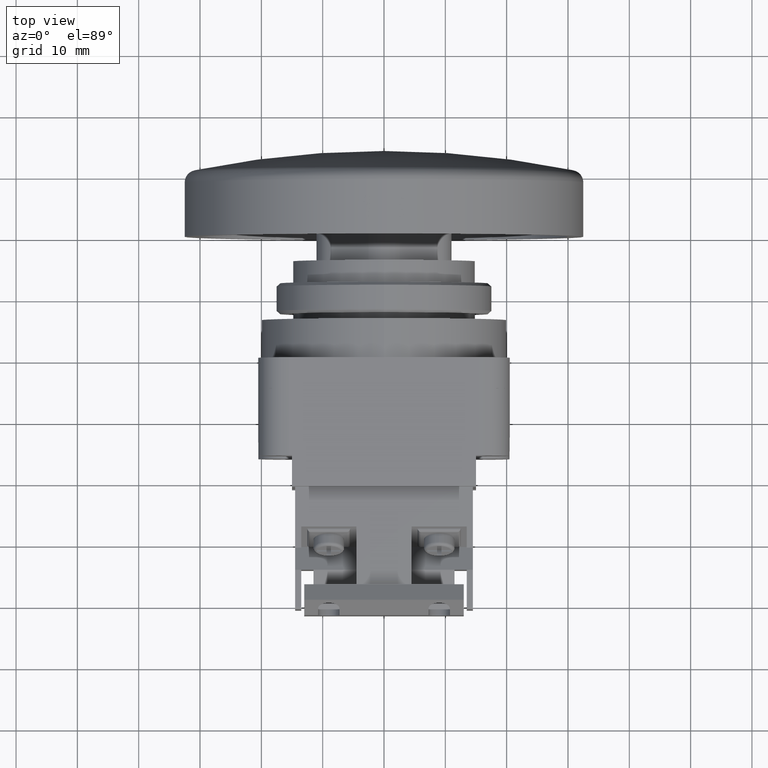
[diagram: clean part render]
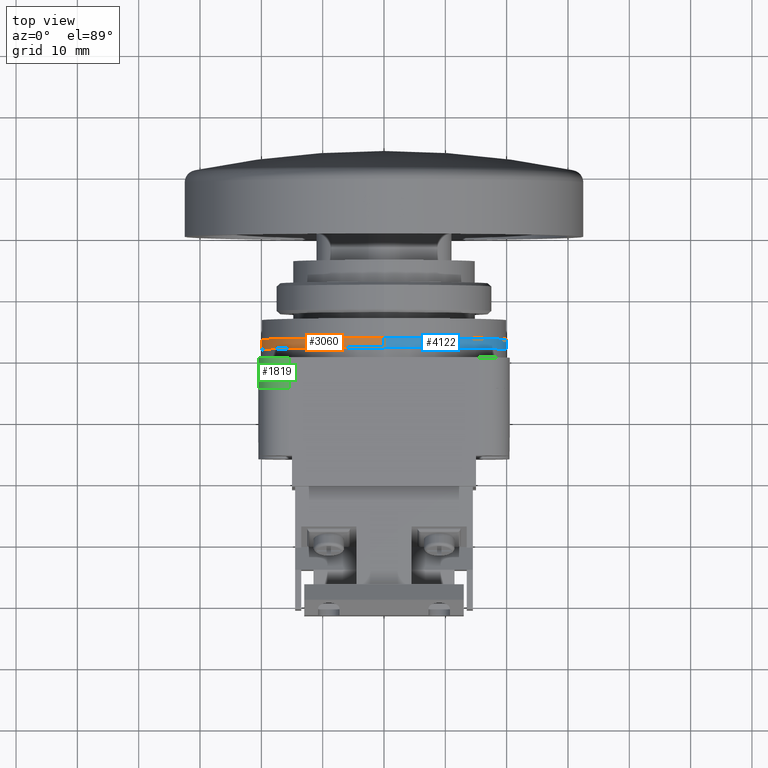
[diagram: same view with three faces highlighted in distinct colors, each labeled with its STEP entity id]
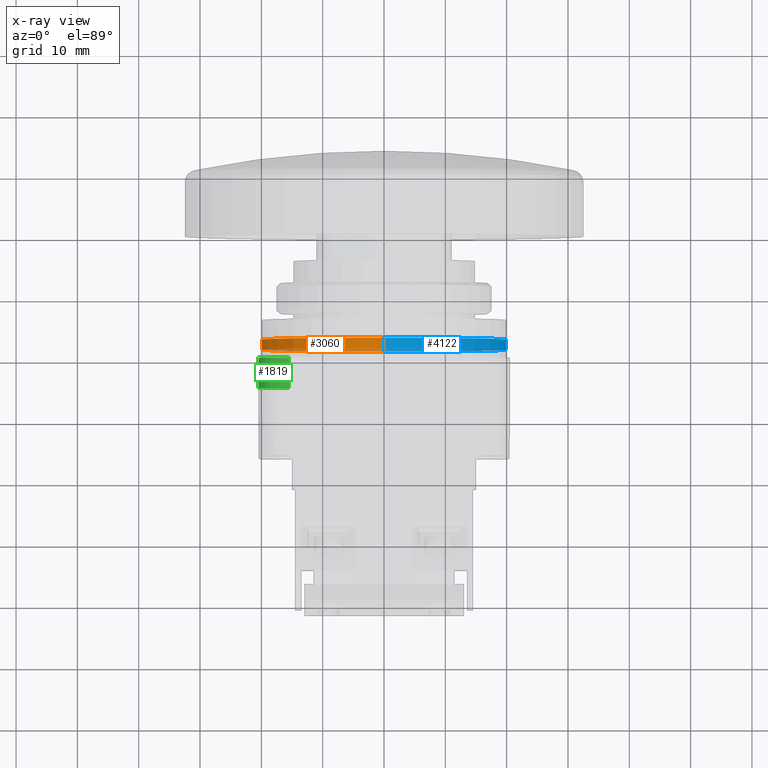
[diagram: x-ray of the same camera — body ghosted, the three highlighted faces saturated]
A machine part, top view with three faces highlighted in distinct colors.
The next image is the same camera in x-ray (body ghosted, the three faces saturated) — at least one of them is partly hidden behind the body in this view.
Their STEP definitions:

[orange] entity #3060 — the highlighted cylindrical surface (partial cylindrical patch) has radius 20 mm, axis along (-0, -1, -0).
#100 = ORIENTED_EDGE ( 'NONE', *, *, #7273, .T. ) ;
#520 = CARTESIAN_POINT ( 'NONE',  ( 2.701731757600108300E-015, 1.600000000000000100, 20.00000000000000000 ) ) ;
#800 = LINE ( 'NONE', #848, #3765 ) ;
#848 = CARTESIAN_POINT ( 'NONE',  ( 2.701731757600108300E-015, 3.200000000000000200, 20.00000000000000000 ) ) ;
#1071 = EDGE_CURVE ( 'NONE', #5324, #7482, #6154, .T. ) ;
#1260 = ORIENTED_EDGE ( 'NONE', *, *, #5693, .F. ) ;
#1266 = ORIENTED_EDGE ( 'NONE', *, *, #6857, .F. ) ;
#1608 = CARTESIAN_POINT ( 'NONE',  ( 2.524381593054017100E-016, 3.200000000000000200, -20.00000000000000000 ) ) ;
#1656 = CIRCLE ( 'NONE', #3781, 20.00000000000000000 ) ;
#1725 = CIRCLE ( 'NONE', #3390, 20.00000000000000000 ) ;
#1991 = DIRECTION ( 'NONE',  ( -0.0000000000000000000, -1.000000000000000000, -0.0000000000000000000 ) ) ;
#2175 = CARTESIAN_POINT ( 'NONE',  ( 2.524381593054017100E-016, 3.200000000000000200, -1.009752637221606900E-015 ) ) ;
#2250 = CARTESIAN_POINT ( 'NONE',  ( 2.524381593054017100E-016, 1.600000000000000100, -20.00000000000000000 ) ) ;
#2391 = FACE_OUTER_BOUND ( 'NONE', #7725, .T. ) ;
#2584 = DIRECTION ( 'NONE',  ( 0.0000000000000000000, 1.000000000000000000, 0.0000000000000000000 ) ) ;
#2778 = DIRECTION ( 'NONE',  ( 0.0000000000000000000, 0.0000000000000000000, 1.000000000000000000 ) ) ;
#2982 = CARTESIAN_POINT ( 'NONE',  ( 2.524381593054017100E-016, 3.200000000000000200, -20.00000000000000000 ) ) ;
#3060 = ADVANCED_FACE ( 'NONE', ( #2391 ), #5353, .T. ) ;
#3385 = VERTEX_POINT ( 'NONE', #520 ) ;
#3390 = AXIS2_PLACEMENT_3D ( 'NONE', #6132, #2584, #6753 ) ;
#3588 = ORIENTED_EDGE ( 'NONE', *, *, #1071, .T. ) ;
#3765 = VECTOR ( 'NONE', #3807, 1000.000000000000000 ) ;
#3781 = AXIS2_PLACEMENT_3D ( 'NONE', #2175, #6335, #2778 ) ;
#3807 = DIRECTION ( 'NONE',  ( -0.0000000000000000000, -1.000000000000000000, -0.0000000000000000000 ) ) ;
#3964 = DIRECTION ( 'NONE',  ( -0.0000000000000000000, -1.000000000000000000, -0.0000000000000000000 ) ) ;
#4556 = VECTOR ( 'NONE', #3964, 1000.000000000000000 ) ;
#5324 = VERTEX_POINT ( 'NONE', #2982 ) ;
#5353 = CYLINDRICAL_SURFACE ( 'NONE', #6883, 20.00000000000000000 ) ;
#5693 = EDGE_CURVE ( 'NONE', #5324, #6775, #1656, .T. ) ;
#6132 = CARTESIAN_POINT ( 'NONE',  ( 2.524381593054017100E-016, 1.600000000000000100, -1.009752637221606900E-015 ) ) ;
#6136 = CARTESIAN_POINT ( 'NONE',  ( 2.524381593054017100E-016, 3.200000000000000200, -1.009752637221606900E-015 ) ) ;
#6154 = LINE ( 'NONE', #1608, #4556 ) ;
#6335 = DIRECTION ( 'NONE',  ( 0.0000000000000000000, 1.000000000000000000, 0.0000000000000000000 ) ) ;
#6644 = CARTESIAN_POINT ( 'NONE',  ( 2.701731757600108300E-015, 3.200000000000000200, 20.00000000000000000 ) ) ;
#6729 = DIRECTION ( 'NONE',  ( 0.0000000000000000000, 0.0000000000000000000, -1.000000000000000000 ) ) ;
#6753 = DIRECTION ( 'NONE',  ( 0.0000000000000000000, 0.0000000000000000000, 1.000000000000000000 ) ) ;
#6775 = VERTEX_POINT ( 'NONE', #6644 ) ;
#6857 = EDGE_CURVE ( 'NONE', #6775, #3385, #800, .T. ) ;
#6883 = AXIS2_PLACEMENT_3D ( 'NONE', #6136, #1991, #6729 ) ;
#7273 = EDGE_CURVE ( 'NONE', #7482, #3385, #1725, .T. ) ;
#7482 = VERTEX_POINT ( 'NONE', #2250 ) ;
#7725 = EDGE_LOOP ( 'NONE', ( #1266, #1260, #3588, #100 ) ) ;

[blue] entity #4122 — the highlighted cylindrical surface (partial cylindrical patch) has radius 20 mm, axis along (-0, -1, -0).
#467 = DIRECTION ( 'NONE',  ( 0.0000000000000000000, 0.0000000000000000000, 1.000000000000000000 ) ) ;
#520 = CARTESIAN_POINT ( 'NONE',  ( 2.701731757600108300E-015, 1.600000000000000100, 20.00000000000000000 ) ) ;
#800 = LINE ( 'NONE', #848, #3765 ) ;
#848 = CARTESIAN_POINT ( 'NONE',  ( 2.701731757600108300E-015, 3.200000000000000200, 20.00000000000000000 ) ) ;
#1071 = EDGE_CURVE ( 'NONE', #5324, #7482, #6154, .T. ) ;
#1344 = DIRECTION ( 'NONE',  ( 0.0000000000000000000, 1.000000000000000000, 0.0000000000000000000 ) ) ;
#1590 = CIRCLE ( 'NONE', #4865, 20.00000000000000000 ) ;
#1608 = CARTESIAN_POINT ( 'NONE',  ( 2.524381593054017100E-016, 3.200000000000000200, -20.00000000000000000 ) ) ;
#1813 = EDGE_CURVE ( 'NONE', #6775, #5324, #1590, .T. ) ;
#1915 = CIRCLE ( 'NONE', #5814, 20.00000000000000000 ) ;
#2208 = DIRECTION ( 'NONE',  ( -0.0000000000000000000, -1.000000000000000000, -0.0000000000000000000 ) ) ;
#2250 = CARTESIAN_POINT ( 'NONE',  ( 2.524381593054017100E-016, 1.600000000000000100, -20.00000000000000000 ) ) ;
#2390 = ORIENTED_EDGE ( 'NONE', *, *, #1071, .F. ) ;
#2982 = CARTESIAN_POINT ( 'NONE',  ( 2.524381593054017100E-016, 3.200000000000000200, -20.00000000000000000 ) ) ;
#3385 = VERTEX_POINT ( 'NONE', #520 ) ;
#3438 = ORIENTED_EDGE ( 'NONE', *, *, #1813, .F. ) ;
#3477 = CYLINDRICAL_SURFACE ( 'NONE', #5419, 20.00000000000000000 ) ;
#3662 = FACE_OUTER_BOUND ( 'NONE', #6072, .T. ) ;
#3765 = VECTOR ( 'NONE', #3807, 1000.000000000000000 ) ;
#3807 = DIRECTION ( 'NONE',  ( -0.0000000000000000000, -1.000000000000000000, -0.0000000000000000000 ) ) ;
#3964 = DIRECTION ( 'NONE',  ( -0.0000000000000000000, -1.000000000000000000, -0.0000000000000000000 ) ) ;
#4024 = DIRECTION ( 'NONE',  ( 0.0000000000000000000, 1.000000000000000000, 0.0000000000000000000 ) ) ;
#4122 = ADVANCED_FACE ( 'NONE', ( #3662 ), #3477, .T. ) ;
#4138 = EDGE_CURVE ( 'NONE', #3385, #7482, #1915, .T. ) ;
#4556 = VECTOR ( 'NONE', #3964, 1000.000000000000000 ) ;
#4587 = ORIENTED_EDGE ( 'NONE', *, *, #6857, .T. ) ;
#4865 = AXIS2_PLACEMENT_3D ( 'NONE', #4896, #1344, #5495 ) ;
#4896 = CARTESIAN_POINT ( 'NONE',  ( 2.524381593054017100E-016, 3.200000000000000200, -1.009752637221606900E-015 ) ) ;
#5157 = CARTESIAN_POINT ( 'NONE',  ( 2.524381593054017100E-016, 3.200000000000000200, -1.009752637221606900E-015 ) ) ;
#5324 = VERTEX_POINT ( 'NONE', #2982 ) ;
#5419 = AXIS2_PLACEMENT_3D ( 'NONE', #5157, #2208, #5751 ) ;
#5448 = ORIENTED_EDGE ( 'NONE', *, *, #4138, .T. ) ;
#5495 = DIRECTION ( 'NONE',  ( 0.0000000000000000000, 0.0000000000000000000, 1.000000000000000000 ) ) ;
#5751 = DIRECTION ( 'NONE',  ( 0.0000000000000000000, 0.0000000000000000000, -1.000000000000000000 ) ) ;
#5814 = AXIS2_PLACEMENT_3D ( 'NONE', #7601, #4024, #467 ) ;
#6072 = EDGE_LOOP ( 'NONE', ( #3438, #4587, #5448, #2390 ) ) ;
#6154 = LINE ( 'NONE', #1608, #4556 ) ;
#6644 = CARTESIAN_POINT ( 'NONE',  ( 2.701731757600108300E-015, 3.200000000000000200, 20.00000000000000000 ) ) ;
#6775 = VERTEX_POINT ( 'NONE', #6644 ) ;
#6857 = EDGE_CURVE ( 'NONE', #6775, #3385, #800, .T. ) ;
#7482 = VERTEX_POINT ( 'NONE', #2250 ) ;
#7601 = CARTESIAN_POINT ( 'NONE',  ( 2.524381593054017100E-016, 1.600000000000000100, -1.009752637221606900E-015 ) ) ;

[green] entity #1819 — the highlighted cylindrical surface (edge-blend (fillet) strip) has radius 5 mm, axis along (0, 1, 0).
#48 = VECTOR ( 'NONE', #5064, 1000.000000000000000 ) ;
#154 = DIRECTION ( 'NONE',  ( 0.0000000000000000000, 0.0000000000000000000, 1.000000000000000000 ) ) ;
#757 = AXIS2_PLACEMENT_3D ( 'NONE', #853, #4998, #1450 ) ;
#853 = CARTESIAN_POINT ( 'NONE',  ( -15.50000000000000000, -5.000000000000000900, 15.50000000000000700 ) ) ;
#1204 = CYLINDRICAL_SURFACE ( 'NONE', #6466, 5.000000000000000900 ) ;
#1314 = EDGE_CURVE ( 'NONE', #1637, #1449, #4093, .T. ) ;
#1318 = DIRECTION ( 'NONE',  ( 0.0000000000000000000, 1.000000000000000000, 0.0000000000000000000 ) ) ;
#1336 = ORIENTED_EDGE ( 'NONE', *, *, #1903, .T. ) ;
#1449 = VERTEX_POINT ( 'NONE', #2613 ) ;
#1450 = DIRECTION ( 'NONE',  ( 1.040834085586084100E-015, 0.0000000000000000000, -1.000000000000000000 ) ) ;
#1605 = ORIENTED_EDGE ( 'NONE', *, *, #4563, .F. ) ;
#1632 = LINE ( 'NONE', #7464, #48 ) ;
#1637 = VERTEX_POINT ( 'NONE', #2920 ) ;
#1691 = EDGE_LOOP ( 'NONE', ( #1605, #1336, #7687, #4501 ) ) ;
#1819 = ADVANCED_FACE ( 'NONE', ( #5936 ), #1204, .T. ) ;
#1903 = EDGE_CURVE ( 'NONE', #5295, #5066, #7176, .T. ) ;
#1906 = LINE ( 'NONE', #3892, #5048 ) ;
#2135 = CARTESIAN_POINT ( 'NONE',  ( -15.50000000000000400, -5.000000000000000900, 20.50000000000000700 ) ) ;
#2613 = CARTESIAN_POINT ( 'NONE',  ( -15.50000000000000400, 0.0000000000000000000, 20.50000000000000700 ) ) ;
#2920 = CARTESIAN_POINT ( 'NONE',  ( -20.50000000000000000, 0.0000000000000000000, 15.50000000000000700 ) ) ;
#3892 = CARTESIAN_POINT ( 'NONE',  ( -20.50000000000000000, -12.00000000000000000, 15.50000000000000700 ) ) ;
#4093 = CIRCLE ( 'NONE', #6370, 5.000000000000000900 ) ;
#4296 = CARTESIAN_POINT ( 'NONE',  ( -15.50000000000000000, -12.00000000000000000, 15.50000000000000700 ) ) ;
#4501 = ORIENTED_EDGE ( 'NONE', *, *, #1314, .F. ) ;
#4563 = EDGE_CURVE ( 'NONE', #5295, #1637, #1906, .T. ) ;
#4859 = CARTESIAN_POINT ( 'NONE',  ( -15.50000000000000000, 0.0000000000000000000, 15.50000000000000700 ) ) ;
#4998 = DIRECTION ( 'NONE',  ( 0.0000000000000000000, 1.000000000000000000, 2.115516434118058100E-017 ) ) ;
#5048 = VECTOR ( 'NONE', #6844, 1000.000000000000000 ) ;
#5064 = DIRECTION ( 'NONE',  ( -0.0000000000000000000, -1.000000000000000000, -0.0000000000000000000 ) ) ;
#5066 = VERTEX_POINT ( 'NONE', #2135 ) ;
#5295 = VERTEX_POINT ( 'NONE', #7723 ) ;
#5456 = DIRECTION ( 'NONE',  ( 1.040834085586084100E-015, 0.0000000000000000000, -1.000000000000000000 ) ) ;
#5936 = FACE_OUTER_BOUND ( 'NONE', #1691, .T. ) ;
#6370 = AXIS2_PLACEMENT_3D ( 'NONE', #4859, #1318, #5456 ) ;
#6466 = AXIS2_PLACEMENT_3D ( 'NONE', #4296, #7295, #154 ) ;
#6844 = DIRECTION ( 'NONE',  ( 0.0000000000000000000, 1.000000000000000000, 0.0000000000000000000 ) ) ;
#6946 = EDGE_CURVE ( 'NONE', #1449, #5066, #1632, .T. ) ;
#7176 = CIRCLE ( 'NONE', #757, 5.000000000000000900 ) ;
#7295 = DIRECTION ( 'NONE',  ( 0.0000000000000000000, 1.000000000000000000, 0.0000000000000000000 ) ) ;
#7464 = CARTESIAN_POINT ( 'NONE',  ( -15.50000000000000400, -12.00000000000000000, 20.50000000000000700 ) ) ;
#7687 = ORIENTED_EDGE ( 'NONE', *, *, #6946, .F. ) ;
#7723 = CARTESIAN_POINT ( 'NONE',  ( -20.50000000000000700, -5.000000000000000900, 15.50000000000000700 ) ) ;